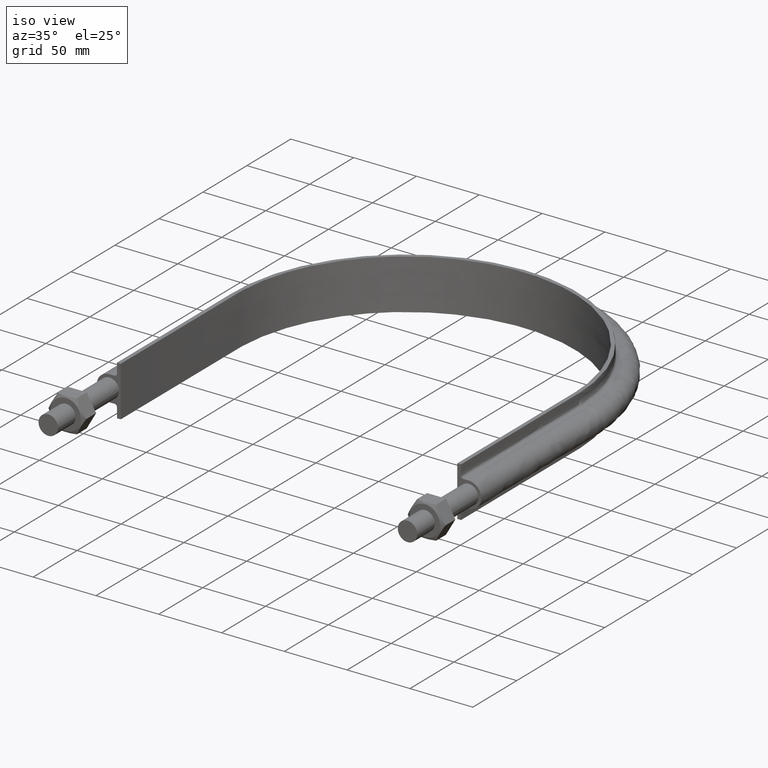
[diagram: clean part render]
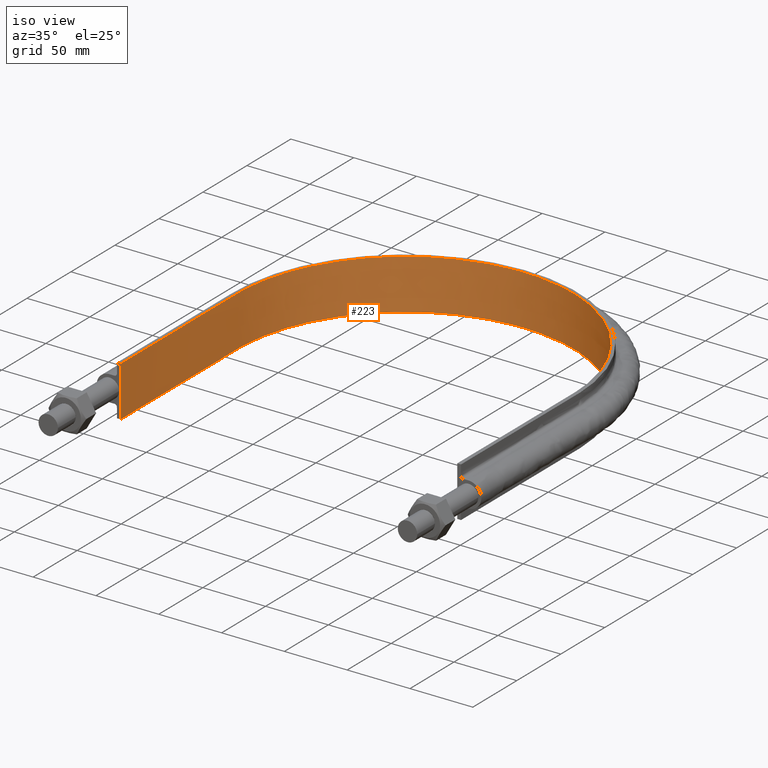
[diagram: same view with one face highlighted and labeled with its STEP entity id]
A machine part, iso view. The second image highlights one B-rep face of the part: STEP entity #223.
In plain terms, the highlighted face is a SurfaceOfExtrusion surface.
Its self-contained STEP definition (entity closure, byte-faithful):
#223 = ADVANCED_FACE( '', ( #269 ), #270, .T. );
#269 = FACE_OUTER_BOUND( '', #914, .T. );
#270 = SURFACE_OF_LINEAR_EXTRUSION( '', #915, #916 );
#914 = EDGE_LOOP( '', ( #1588, #1589, #1590, #1591 ) );
#915 = B_SPLINE_CURVE_WITH_KNOTS( '', 3, ( #1592, #1593, #1594, #1595, #1596, #1597, #1598, #1599, #1600, #1601, #1602, #1603, #1604, #1605, #1606, #1607, #1608 ), .UNSPECIFIED., .F., .F., ( 4, 3, 1, 1, 1, 1, 1, 1, 1, 3, 4 ), ( -10.0000000000000, -9.00000000000000, -8.00000000000000, -7.00000000000000, -6.00000000000000, -5.00000000000000, -4.00000000000000, -3.00000000000000, -2.00000000000000, -1.00000000000000, 0.000000000000000 ), .UNSPECIFIED. );
#916 = VECTOR( '', #1609, 1000.00000000000 );
#1588 = ORIENTED_EDGE( '', *, *, #1844, .T. );
#1589 = ORIENTED_EDGE( '', *, *, #1845, .F. );
#1590 = ORIENTED_EDGE( '', *, *, #1841, .F. );
#1591 = ORIENTED_EDGE( '', *, *, #1846, .T. );
#1592 = CARTESIAN_POINT( '', ( -133.950000000000, 69.5000000000001, -440.423363781454 ) );
#1593 = CARTESIAN_POINT( '', ( -133.950000000000, 113.683333333333, -440.423363781454 ) );
#1594 = CARTESIAN_POINT( '', ( -133.950000000000, 157.866666666667, -440.423363781454 ) );
#1595 = CARTESIAN_POINT( '', ( -133.950000000000, 202.050000000000, -440.423363781454 ) );
#1596 = CARTESIAN_POINT( '', ( -133.950000000000, 219.566032700257, -440.423363781454 ) );
#1597 = CARTESIAN_POINT( '', ( -126.975474198415, 254.652216480459, -440.423363781454 ) );
#1598 = CARTESIAN_POINT( '', ( -97.1828205848687, 299.230867859828, -440.423363781454 ) );
#1599 = CARTESIAN_POINT( '', ( -52.5949635017385, 329.026032119855, -440.423363781454 ) );
#1600 = CARTESIAN_POINT( '', ( 9.70849429885587E-014, 339.486983940073, -440.423363781454 ) );
#1601 = CARTESIAN_POINT( '', ( 52.5949635017385, 329.026032119855, -440.423363781454 ) );
#1602 = CARTESIAN_POINT( '', ( 97.1828205848688, 299.230867859828, -440.423363781454 ) );
#1603 = CARTESIAN_POINT( '', ( 126.975474198415, 254.652216480460, -440.423363781454 ) );
#1604 = CARTESIAN_POINT( '', ( 133.950000000000, 219.566032700257, -440.423363781454 ) );
#1605 = CARTESIAN_POINT( '', ( 133.950000000000, 202.050000000000, -440.423363781454 ) );
#1606 = CARTESIAN_POINT( '', ( 133.950000000000, 157.866666666667, -440.423363781454 ) );
#1607 = CARTESIAN_POINT( '', ( 133.950000000000, 113.683333333333, -440.423363781454 ) );
#1608 = CARTESIAN_POINT( '', ( 133.950000000000, 69.5000000000000, -440.423363781454 ) );
#1609 = DIRECTION( '', ( 0.000000000000000, 0.000000000000000, 1.00000000000000 ) );
#1841 = EDGE_CURVE( '', #1922, #1923, #1924, .T. );
#1844 = EDGE_CURVE( '', #1927, #1928, #1929, .T. );
#1845 = EDGE_CURVE( '', #1923, #1928, #1930, .T. );
#1846 = EDGE_CURVE( '', #1922, #1927, #1931, .T. );
#1922 = VERTEX_POINT( '', #2444 );
#1923 = VERTEX_POINT( '', #2445 );
#1924 = LINE( '', #2446, #2447 );
#1927 = VERTEX_POINT( '', #2452 );
#1928 = VERTEX_POINT( '', #2453 );
#1929 = LINE( '', #2454, #2455 );
#1930 = B_SPLINE_CURVE_WITH_KNOTS( '', 3, ( #2456, #2457, #2458, #2459, #2460, #2461, #2462, #2463, #2464, #2465, #2466, #2467, #2468, #2469, #2470, #2471, #2472 ), .UNSPECIFIED., .F., .F., ( 4, 3, 1, 1, 1, 1, 1, 1, 1, 3, 4 ), ( -10.0000000000000, -9.00000000000000, -8.00000000000000, -7.00000000000000, -6.00000000000000, -5.00000000000000, -4.00000000000000, -3.00000000000000, -2.00000000000000, -1.00000000000000, 0.000000000000000 ), .UNSPECIFIED. );
#1931 = B_SPLINE_CURVE_WITH_KNOTS( '', 3, ( #2473, #2474, #2475, #2476, #2477, #2478, #2479, #2480, #2481, #2482, #2483, #2484, #2485, #2486, #2487, #2488, #2489 ), .UNSPECIFIED., .F., .F., ( 4, 3, 1, 1, 1, 1, 1, 1, 1, 3, 4 ), ( -10.0000000000000, -9.00000000000000, -8.00000000000000, -7.00000000000000, -6.00000000000000, -5.00000000000000, -4.00000000000000, -3.00000000000000, -2.00000000000000, -1.00000000000000, 0.000000000000000 ), .UNSPECIFIED. );
#2444 = CARTESIAN_POINT( '', ( -133.950000000000, 69.5000000000001, -20.0000000000000 ) );
#2445 = CARTESIAN_POINT( '', ( -133.950000000000, 69.5000000000001, 20.0000000000000 ) );
#2446 = CARTESIAN_POINT( '', ( -133.950000000000, 69.5000000000001, -440.423363781454 ) );
#2447 = VECTOR( '', #2778, 1000.00000000000 );
#2452 = CARTESIAN_POINT( '', ( 133.950000000000, 69.5000000000000, -20.0000000000000 ) );
#2453 = CARTESIAN_POINT( '', ( 133.950000000000, 69.5000000000001, 20.0000000000000 ) );
#2454 = CARTESIAN_POINT( '', ( 133.950000000000, 69.5000000000000, -440.423363781454 ) );
#2455 = VECTOR( '', #2781, 1000.00000000000 );
#2456 = CARTESIAN_POINT( '', ( -133.950000000000, 69.5000000000001, 20.0000000000001 ) );
#2457 = CARTESIAN_POINT( '', ( -133.950000000000, 113.683333333333, 20.0000000000001 ) );
#2458 = CARTESIAN_POINT( '', ( -133.950000000000, 157.866666666667, 20.0000000000001 ) );
#2459 = CARTESIAN_POINT( '', ( -133.950000000000, 202.050000000000, 20.0000000000001 ) );
#2460 = CARTESIAN_POINT( '', ( -133.950000000000, 219.566032700257, 20.0000000000001 ) );
#2461 = CARTESIAN_POINT( '', ( -126.975474198415, 254.652216480459, 20.0000000000001 ) );
#2462 = CARTESIAN_POINT( '', ( -97.1828205848687, 299.230867859828, 20.0000000000001 ) );
#2463 = CARTESIAN_POINT( '', ( -52.5949635017385, 329.026032119855, 20.0000000000001 ) );
#2464 = CARTESIAN_POINT( '', ( 9.70849429885587E-014, 339.486983940073, 20.0000000000001 ) );
#2465 = CARTESIAN_POINT( '', ( 52.5949635017385, 329.026032119855, 20.0000000000001 ) );
#2466 = CARTESIAN_POINT( '', ( 97.1828205848688, 299.230867859828, 20.0000000000001 ) );
#2467 = CARTESIAN_POINT( '', ( 126.975474198415, 254.652216480460, 20.0000000000001 ) );
#2468 = CARTESIAN_POINT( '', ( 133.950000000000, 219.566032700257, 20.0000000000001 ) );
#2469 = CARTESIAN_POINT( '', ( 133.950000000000, 202.050000000000, 20.0000000000001 ) );
#2470 = CARTESIAN_POINT( '', ( 133.950000000000, 157.866666666667, 20.0000000000001 ) );
#2471 = CARTESIAN_POINT( '', ( 133.950000000000, 113.683333333333, 20.0000000000001 ) );
#2472 = CARTESIAN_POINT( '', ( 133.950000000000, 69.5000000000000, 20.0000000000001 ) );
#2473 = CARTESIAN_POINT( '', ( -133.950000000000, 69.5000000000001, -20.0000000000000 ) );
#2474 = CARTESIAN_POINT( '', ( -133.950000000000, 113.683333333333, -20.0000000000000 ) );
#2475 = CARTESIAN_POINT( '', ( -133.950000000000, 157.866666666667, -20.0000000000000 ) );
#2476 = CARTESIAN_POINT( '', ( -133.950000000000, 202.050000000000, -20.0000000000000 ) );
#2477 = CARTESIAN_POINT( '', ( -133.950000000000, 219.566032700257, -20.0000000000000 ) );
#2478 = CARTESIAN_POINT( '', ( -126.975474198415, 254.652216480459, -20.0000000000000 ) );
#2479 = CARTESIAN_POINT( '', ( -97.1828205848687, 299.230867859828, -20.0000000000000 ) );
#2480 = CARTESIAN_POINT( '', ( -52.5949635017385, 329.026032119855, -20.0000000000000 ) );
#2481 = CARTESIAN_POINT( '', ( 9.70849429885587E-014, 339.486983940073, -20.0000000000000 ) );
#2482 = CARTESIAN_POINT( '', ( 52.5949635017385, 329.026032119855, -20.0000000000000 ) );
#2483 = CARTESIAN_POINT( '', ( 97.1828205848688, 299.230867859828, -20.0000000000000 ) );
#2484 = CARTESIAN_POINT( '', ( 126.975474198415, 254.652216480460, -20.0000000000000 ) );
#2485 = CARTESIAN_POINT( '', ( 133.950000000000, 219.566032700257, -20.0000000000000 ) );
#2486 = CARTESIAN_POINT( '', ( 133.950000000000, 202.050000000000, -20.0000000000000 ) );
#2487 = CARTESIAN_POINT( '', ( 133.950000000000, 157.866666666667, -20.0000000000000 ) );
#2488 = CARTESIAN_POINT( '', ( 133.950000000000, 113.683333333333, -20.0000000000000 ) );
#2489 = CARTESIAN_POINT( '', ( 133.950000000000, 69.5000000000000, -20.0000000000000 ) );
#2778 = DIRECTION( '', ( 0.000000000000000, 0.000000000000000, 1.00000000000000 ) );
#2781 = DIRECTION( '', ( 0.000000000000000, 0.000000000000000, 1.00000000000000 ) );